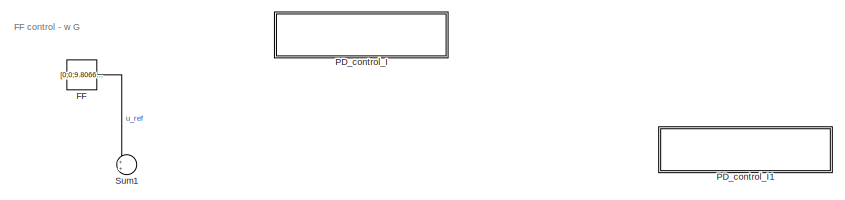
[diagram: root canvas - part 1/3, top center region]
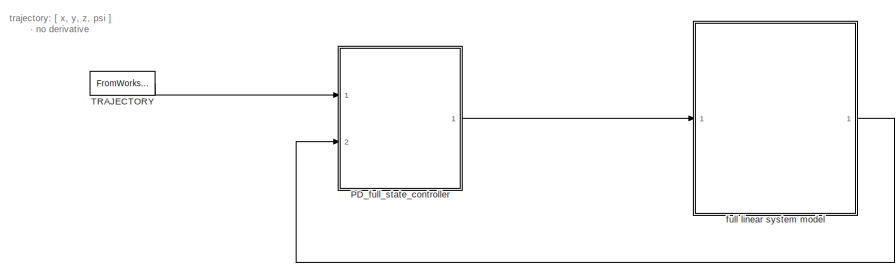
[diagram: root canvas - part 2/3, bottom left region]
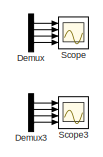
[diagram: root canvas - part 3/3, bottom right region]
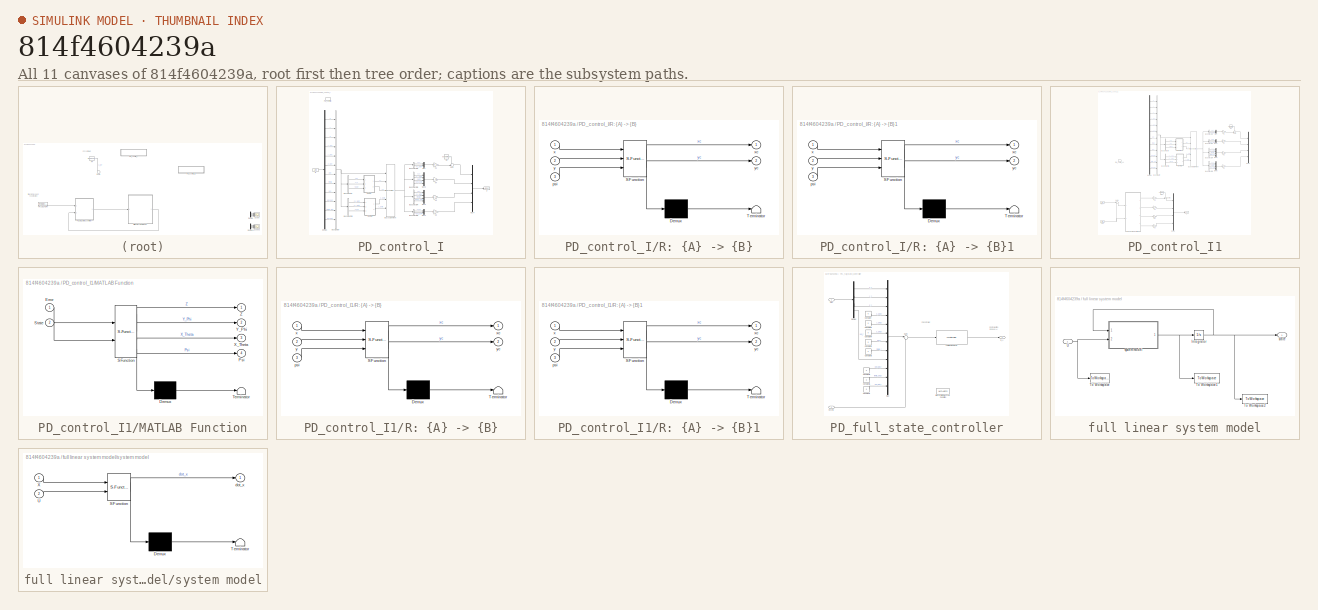
[diagram: thumbnail index - all 11 canvases of the model, root first then tree order]
MODEL slx_814f4604239a
KIND model
CONFIG AbsTol = 1e-5
CONFIG FixedStep = auto
CONFIG MaxStep = 1e-6
CONFIG MinStep = auto
CONFIG RelTol = 1e-5
CONFIG SampleTimeConstraint = Unconstrained
CONFIG Solver = ode45
CONFIG SolverMode = Auto
CONFIG SolverName = ode45
CONFIG StartTime = 0.0
CONFIG StopTime = Tfin
BLOCK [Demux] Demux
  Commented = on
  DisplayOption = bar
  Ports = [1, 4]
BLOCK [Demux] Demux3
  Commented = on
  DisplayOption = bar
  Ports = [1, 4]
BLOCK [Constant] FF
  Commented = on
  Value = [0;0;9.80665*param.m;0]
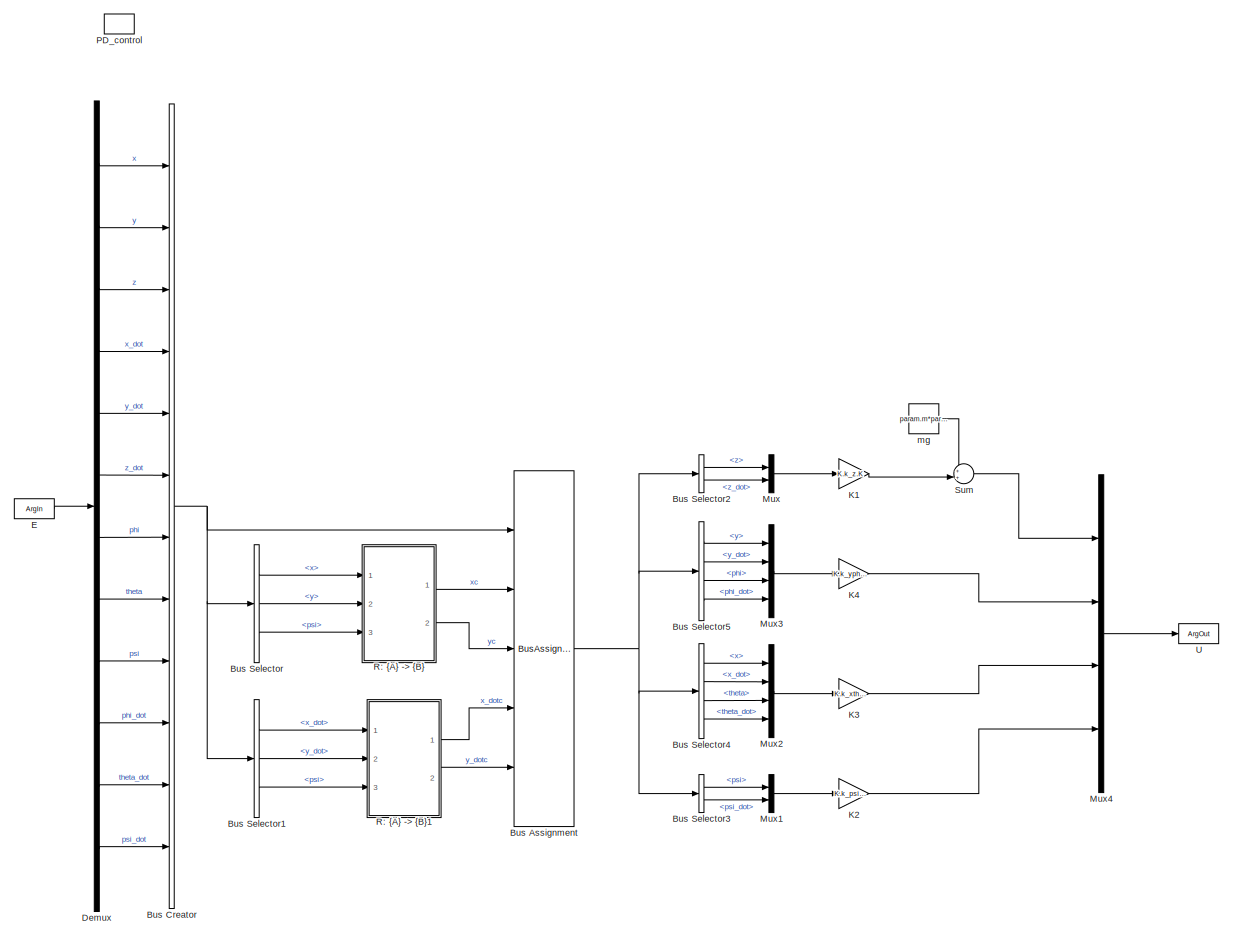
[diagram: PD_control_I - part 1/1, most of the canvas]
BLOCK [SubSystem] PD_control_I
  Ports = [0, 0, 0, 1]
  RequestExecContextInheritance = off
  TreatAsAtomicUnit = on
BLOCK [BusAssignment] PD_control_I/Bus Assignment
  AssignedSignals = x,y,x_dot,y_dot
  Ports = [5, 1]
BLOCK [BusCreator] PD_control_I/Bus Creator
  DisplayOption = bar
  Inputs = 12
  Ports = [12, 1]
BLOCK [BusSelector] PD_control_I/Bus Selector
  OutputSignals = x,y,psi
  Ports = [1, 3]
BLOCK [BusSelector] PD_control_I/Bus Selector1
  OutputSignals = x_dot,y_dot,psi
  Ports = [1, 3]
BLOCK [BusSelector] PD_control_I/Bus Selector2
  OutputSignals = z,z_dot
  Ports = [1, 2]
BLOCK [BusSelector] PD_control_I/Bus Selector3
  OutputSignals = psi,psi_dot
  Ports = [1, 2]
BLOCK [BusSelector] PD_control_I/Bus Selector4
  OutputSignals = x,x_dot,theta,theta_dot
  Ports = [1, 4]
BLOCK [BusSelector] PD_control_I/Bus Selector5
  OutputSignals = y,y_dot,phi,phi_dot
  Ports = [1, 4]
BLOCK [Demux] PD_control_I/Demux
  DisplayOption = bar
  Outputs = 12
  Ports = [1, 12]
BLOCK [ArgIn] PD_control_I/E
  ArgumentName = E
  DisableCoverage = on
  PortDimensions = 12
BLOCK [Gain] PD_control_I/K1
  Gain = K.k_z.K
  Multiplication = Matrix(K*u)
  OutDataTypeStr = Inherit: Inherit via internal rule
  ParamDataTypeStr = Inherit: Inherit via internal rule
  SaturateOnIntegerOverflow = off
BLOCK [Gain] PD_control_I/K2
  Gain = K.k_psi.K
  Multiplication = Matrix(K*u)
  OutDataTypeStr = Inherit: Inherit via internal rule
  ParamDataTypeStr = Inherit: Inherit via internal rule
  SaturateOnIntegerOverflow = off
BLOCK [Gain] PD_control_I/K3
  Gain = K.k_xtheta.K
  Multiplication = Matrix(K*u)
  OutDataTypeStr = Inherit: Inherit via internal rule
  ParamDataTypeStr = Inherit: Inherit via internal rule
  SaturateOnIntegerOverflow = off
BLOCK [Gain] PD_control_I/K4
  Gain = K.k_yphi.K
  Multiplication = Matrix(K*u)
  OutDataTypeStr = Inherit: Inherit via internal rule
  ParamDataTypeStr = Inherit: Inherit via internal rule
  SaturateOnIntegerOverflow = off
BLOCK [Mux] PD_control_I/Mux
  DisplayOption = bar
  Inputs = 2
  Ports = [2, 1]
BLOCK [Mux] PD_control_I/Mux1
  DisplayOption = bar
  Inputs = 2
  Ports = [2, 1]
BLOCK [Mux] PD_control_I/Mux2
  DisplayOption = bar
  Ports = [4, 1]
BLOCK [Mux] PD_control_I/Mux3
  DisplayOption = bar
  Ports = [4, 1]
BLOCK [Mux] PD_control_I/Mux4
  DisplayOption = bar
  Ports = [4, 1]
BLOCK [TriggerPort] PD_control_I/PD_control
  FunctionName = PD_control
  IsSimulinkFunction = on
  Ports = []
  StatesWhenEnabling = held
  TriggerType = function-call
BLOCK [SubSystem] PD_control_I/R: {A} -> {B}
  ErrorFcn = Stateflow.Translate.translate
  PermitHierarchicalResolution = ExplicitOnly
  Ports = [3, 2]
  RequestExecContextInheritance = off
  SFBlockType = MATLAB Function
  TreatAsAtomicUnit = on
BLOCK [Demux] PD_control_I/R: {A} -> {B}/ Demux 
  Outputs = 1
  Ports = [1, 1]
BLOCK [S-Function] PD_control_I/R: {A} -> {B}/ SFunction 
  EnableBusSupport = on
  FunctionName = sf_sfun
  PortCounts = [3 3]
  Ports = [3, 3]
  Tag = Stateflow S-Function main_sys_v2 1
BLOCK [Terminator] PD_control_I/R: {A} -> {B}/ Terminator 
BLOCK [Inport] PD_control_I/R: {A} -> {B}/psi
  IconDisplay = Port number
  Port = 3
BLOCK [Inport] PD_control_I/R: {A} -> {B}/x
  IconDisplay = Port number
BLOCK [Outport] PD_control_I/R: {A} -> {B}/xc
  IconDisplay = Port number
BLOCK [Inport] PD_control_I/R: {A} -> {B}/y
  IconDisplay = Port number
  Port = 2
BLOCK [Outport] PD_control_I/R: {A} -> {B}/yc
  IconDisplay = Port number
  Port = 2
BLOCK [SubSystem] PD_control_I/R: {A} -> {B}1
  ErrorFcn = Stateflow.Translate.translate
  PermitHierarchicalResolution = ExplicitOnly
  Ports = [3, 2]
  RequestExecContextInheritance = off
  SFBlockType = MATLAB Function
  TreatAsAtomicUnit = on
BLOCK [Demux] PD_control_I/R: {A} -> {B}1/ Demux 
  Outputs = 1
  Ports = [1, 1]
BLOCK [S-Function] PD_control_I/R: {A} -> {B}1/ SFunction 
  EnableBusSupport = on
  FunctionName = sf_sfun
  PortCounts = [3 3]
  Ports = [3, 3]
  Tag = Stateflow S-Function main_sys_v2 3
BLOCK [Terminator] PD_control_I/R: {A} -> {B}1/ Terminator 
BLOCK [Inport] PD_control_I/R: {A} -> {B}1/psi
  IconDisplay = Port number
  Port = 3
BLOCK [Inport] PD_control_I/R: {A} -> {B}1/x
  IconDisplay = Port number
BLOCK [Outport] PD_control_I/R: {A} -> {B}1/xc
  IconDisplay = Port number
BLOCK [Inport] PD_control_I/R: {A} -> {B}1/y
  IconDisplay = Port number
  Port = 2
BLOCK [Outport] PD_control_I/R: {A} -> {B}1/yc
  IconDisplay = Port number
  Port = 2
BLOCK [Sum] PD_control_I/Sum
  IconShape = round
  InputSameDT = off
  Inputs = ++|
  OutDataTypeStr = Inherit: Inherit via internal rule
  Ports = [2, 1]
  SaturateOnIntegerOverflow = off
BLOCK [ArgOut] PD_control_I/U
  ArgumentName = U
  DisableCoverage = on
  PortDimensions = 4
BLOCK [Constant] PD_control_I/mg
  SampleTime = -1
  Value = param.m*param.g
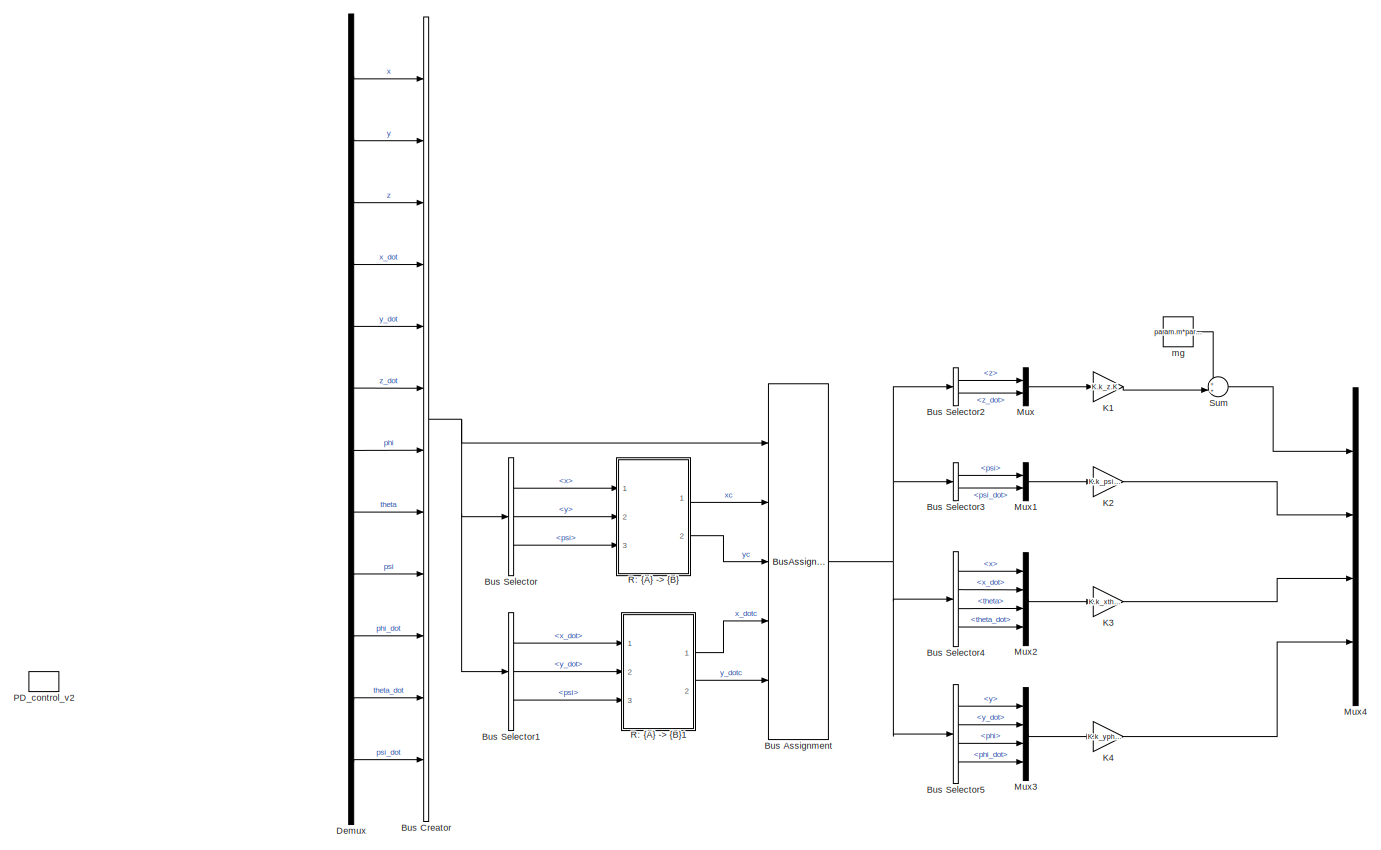
[diagram: PD_control_I1 - part 1/2, full width, top band]
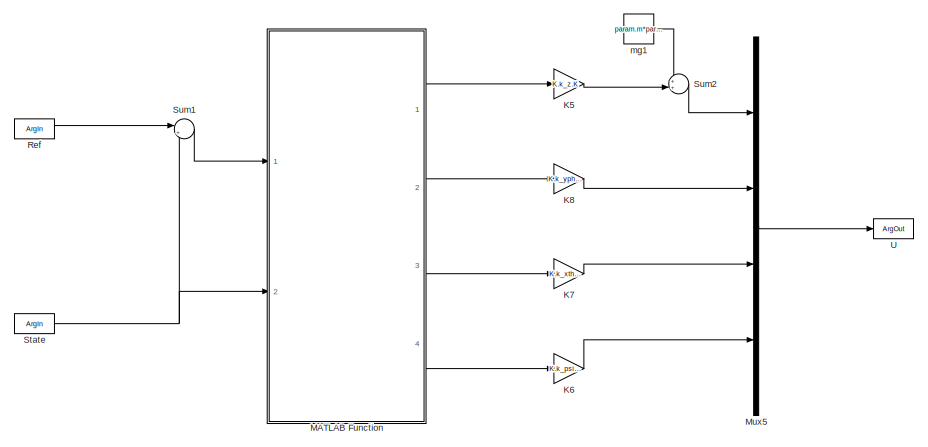
[diagram: PD_control_I1 - part 2/2, bottom left region]
BLOCK [SubSystem] PD_control_I1
  Ports = [0, 0, 0, 1]
  RequestExecContextInheritance = off
  TreatAsAtomicUnit = on
BLOCK [BusAssignment] PD_control_I1/Bus Assignment
  AssignedSignals = x,y,x_dot,y_dot
  Commented = on
  Ports = [5, 1]
BLOCK [BusCreator] PD_control_I1/Bus Creator
  Commented = on
  DisplayOption = bar
  Inputs = 12
  Ports = [12, 1]
BLOCK [BusSelector] PD_control_I1/Bus Selector
  Commented = on
  OutputSignals = x,y,psi
  Ports = [1, 3]
BLOCK [BusSelector] PD_control_I1/Bus Selector1
  Commented = on
  OutputSignals = x_dot,y_dot,psi
  Ports = [1, 3]
BLOCK [BusSelector] PD_control_I1/Bus Selector2
  Commented = on
  OutputSignals = z,z_dot
  Ports = [1, 2]
BLOCK [BusSelector] PD_control_I1/Bus Selector3
  Commented = on
  OutputSignals = psi,psi_dot
  Ports = [1, 2]
BLOCK [BusSelector] PD_control_I1/Bus Selector4
  Commented = on
  OutputSignals = x,x_dot,theta,theta_dot
  Ports = [1, 4]
BLOCK [BusSelector] PD_control_I1/Bus Selector5
  Commented = on
  OutputSignals = y,y_dot,phi,phi_dot
  Ports = [1, 4]
BLOCK [Demux] PD_control_I1/Demux
  Commented = on
  DisplayOption = bar
  Outputs = 12
  Ports = [1, 12]
BLOCK [Gain] PD_control_I1/K1
  Commented = on
  Gain = K.k_z.K
  Multiplication = Matrix(K*u)
  OutDataTypeStr = Inherit: Inherit via internal rule
  ParamDataTypeStr = Inherit: Inherit via internal rule
  SaturateOnIntegerOverflow = off
BLOCK [Gain] PD_control_I1/K2
  Commented = on
  Gain = K.k_psi.K
  Multiplication = Matrix(K*u)
  OutDataTypeStr = Inherit: Inherit via internal rule
  ParamDataTypeStr = Inherit: Inherit via internal rule
  SaturateOnIntegerOverflow = off
BLOCK [Gain] PD_control_I1/K3
  Commented = on
  Gain = K.k_xtheta.K
  Multiplication = Matrix(K*u)
  OutDataTypeStr = Inherit: Inherit via internal rule
  ParamDataTypeStr = Inherit: Inherit via internal rule
  SaturateOnIntegerOverflow = off
BLOCK [Gain] PD_control_I1/K4
  Commented = on
  Gain = K.k_yphi.K
  Multiplication = Matrix(K*u)
  OutDataTypeStr = Inherit: Inherit via internal rule
  ParamDataTypeStr = Inherit: Inherit via internal rule
  SaturateOnIntegerOverflow = off
BLOCK [Gain] PD_control_I1/K5
  Gain = K.k_z.K
  Multiplication = Matrix(K*u)
  OutDataTypeStr = Inherit: Inherit via internal rule
  ParamDataTypeStr = Inherit: Inherit via internal rule
  SaturateOnIntegerOverflow = off
BLOCK [Gain] PD_control_I1/K6
  Gain = K.k_psi.K
  Multiplication = Matrix(K*u)
  OutDataTypeStr = Inherit: Inherit via internal rule
  ParamDataTypeStr = Inherit: Inherit via internal rule
  SaturateOnIntegerOverflow = off
BLOCK [Gain] PD_control_I1/K7
  Gain = K.k_xtheta.K
  Multiplication = Matrix(K*u)
  OutDataTypeStr = Inherit: Inherit via internal rule
  ParamDataTypeStr = Inherit: Inherit via internal rule
  SaturateOnIntegerOverflow = off
BLOCK [Gain] PD_control_I1/K8
  Gain = K.k_yphi.K
  Multiplication = Matrix(K*u)
  OutDataTypeStr = Inherit: Inherit via internal rule
  ParamDataTypeStr = Inherit: Inherit via internal rule
  SaturateOnIntegerOverflow = off
BLOCK [SubSystem] PD_control_I1/MATLAB Function
  ErrorFcn = Stateflow.Translate.translate
  PermitHierarchicalResolution = ExplicitOnly
  Ports = [2, 4]
  RequestExecContextInheritance = off
  SFBlockType = MATLAB Function
  TreatAsAtomicUnit = on
BLOCK [Demux] PD_control_I1/MATLAB Function/ Demux 
  Outputs = 1
  Ports = [1, 1]
BLOCK [S-Function] PD_control_I1/MATLAB Function/ SFunction 
  EnableBusSupport = on
  FunctionName = sf_sfun
  PortCounts = [2 5]
  Ports = [2, 5]
  Tag = Stateflow S-Function main_sys_v2 6
BLOCK [Terminator] PD_control_I1/MATLAB Function/ Terminator 
BLOCK [Inport] PD_control_I1/MATLAB Function/Error
  IconDisplay = Port number
BLOCK [Outport] PD_control_I1/MATLAB Function/Psi
  IconDisplay = Port number
  Port = 4
BLOCK [Inport] PD_control_I1/MATLAB Function/State
  IconDisplay = Port number
  Port = 2
BLOCK [Outport] PD_control_I1/MATLAB Function/X_Theta
  IconDisplay = Port number
  Port = 3
BLOCK [Outport] PD_control_I1/MATLAB Function/Y_Phi
  IconDisplay = Port number
  Port = 2
BLOCK [Outport] PD_control_I1/MATLAB Function/Z
  IconDisplay = Port number
BLOCK [Mux] PD_control_I1/Mux
  Commented = on
  DisplayOption = bar
  Inputs = 2
  Ports = [2, 1]
BLOCK [Mux] PD_control_I1/Mux1
  Commented = on
  DisplayOption = bar
  Inputs = 2
  Ports = [2, 1]
BLOCK [Mux] PD_control_I1/Mux2
  Commented = on
  DisplayOption = bar
  Ports = [4, 1]
BLOCK [Mux] PD_control_I1/Mux3
  Commented = on
  DisplayOption = bar
  Ports = [4, 1]
BLOCK [Mux] PD_control_I1/Mux4
  Commented = on
  DisplayOption = bar
  Ports = [4, 1]
BLOCK [Mux] PD_control_I1/Mux5
  DisplayOption = bar
  Ports = [4, 1]
BLOCK [TriggerPort] PD_control_I1/PD_control_v2
  FunctionName = PD_control_v2
  IsSimulinkFunction = on
  Ports = []
  StatesWhenEnabling = held
  TriggerType = function-call
BLOCK [SubSystem] PD_control_I1/R: {A} -> {B}
  Commented = on
  ErrorFcn = Stateflow.Translate.translate
  PermitHierarchicalResolution = ExplicitOnly
  Ports = [3, 2]
  RequestExecContextInheritance = off
  SFBlockType = MATLAB Function
  TreatAsAtomicUnit = on
BLOCK [Demux] PD_control_I1/R: {A} -> {B}/ Demux 
  Outputs = 1
  Ports = [1, 1]
BLOCK [S-Function] PD_control_I1/R: {A} -> {B}/ SFunction 
  EnableBusSupport = on
  FunctionName = sf_sfun
  PortCounts = [3 3]
  Ports = [3, 3]
  Tag = Stateflow S-Function main_sys_v2 4
BLOCK [Terminator] PD_control_I1/R: {A} -> {B}/ Terminator 
BLOCK [Inport] PD_control_I1/R: {A} -> {B}/psi
  IconDisplay = Port number
  Port = 3
BLOCK [Inport] PD_control_I1/R: {A} -> {B}/x
  IconDisplay = Port number
BLOCK [Outport] PD_control_I1/R: {A} -> {B}/xc
  IconDisplay = Port number
BLOCK [Inport] PD_control_I1/R: {A} -> {B}/y
  IconDisplay = Port number
  Port = 2
BLOCK [Outport] PD_control_I1/R: {A} -> {B}/yc
  IconDisplay = Port number
  Port = 2
BLOCK [SubSystem] PD_control_I1/R: {A} -> {B}1
  Commented = on
  ErrorFcn = Stateflow.Translate.translate
  PermitHierarchicalResolution = ExplicitOnly
  Ports = [3, 2]
  RequestExecContextInheritance = off
  SFBlockType = MATLAB Function
  TreatAsAtomicUnit = on
BLOCK [Demux] PD_control_I1/R: {A} -> {B}1/ Demux 
  Outputs = 1
  Ports = [1, 1]
BLOCK [S-Function] PD_control_I1/R: {A} -> {B}1/ SFunction 
  EnableBusSupport = on
  FunctionName = sf_sfun
  PortCounts = [3 3]
  Ports = [3, 3]
  Tag = Stateflow S-Function main_sys_v2 5
BLOCK [Terminator] PD_control_I1/R: {A} -> {B}1/ Terminator 
BLOCK [Inport] PD_control_I1/R: {A} -> {B}1/psi
  IconDisplay = Port number
  Port = 3
BLOCK [Inport] PD_control_I1/R: {A} -> {B}1/x
  IconDisplay = Port number
BLOCK [Outport] PD_control_I1/R: {A} -> {B}1/xc
  IconDisplay = Port number
BLOCK [Inport] PD_control_I1/R: {A} -> {B}1/y
  IconDisplay = Port number
  Port = 2
BLOCK [Outport] PD_control_I1/R: {A} -> {B}1/yc
  IconDisplay = Port number
  Port = 2
BLOCK [ArgIn] PD_control_I1/Ref
  ArgumentName = Ref
  DisableCoverage = on
  PortDimensions = 12
BLOCK [ArgIn] PD_control_I1/State
  ArgumentName = State
  DisableCoverage = on
  Port = 2
  PortDimensions = 12
BLOCK [Sum] PD_control_I1/Sum
  Commented = on
  IconShape = round
  InputSameDT = off
  Inputs = ++|
  OutDataTypeStr = Inherit: Inherit via internal rule
  Ports = [2, 1]
  SaturateOnIntegerOverflow = off
BLOCK [Sum] PD_control_I1/Sum1
  IconShape = round
  InputSameDT = off
  Inputs = |+-
  OutDataTypeStr = Inherit: Inherit via internal rule
  Ports = [2, 1]
  SaturateOnIntegerOverflow = off
BLOCK [Sum] PD_control_I1/Sum2
  IconShape = round
  InputSameDT = off
  Inputs = ++|
  OutDataTypeStr = Inherit: Inherit via internal rule
  Ports = [2, 1]
  SaturateOnIntegerOverflow = off
BLOCK [ArgOut] PD_control_I1/U
  ArgumentName = U
  DisableCoverage = on
  PortDimensions = 4
BLOCK [Constant] PD_control_I1/mg
  Commented = on
  SampleTime = -1
  Value = param.m*param.g
BLOCK [Constant] PD_control_I1/mg1
  SampleTime = -1
  Value = param.m*param.g
BLOCK [SubSystem] PD_full_state_controller
  Ports = [2, 1]
  RequestExecContextInheritance = off
BLOCK [Constant] PD_full_state_controller/Constant
  Value = 0
BLOCK [Constant] PD_full_state_controller/Constant1
  Value = 0
BLOCK [Constant] PD_full_state_controller/Constant2
  Value = 0
BLOCK [Constant] PD_full_state_controller/Constant3
  Value = 0
BLOCK [Constant] PD_full_state_controller/Constant4
  Value = 0
BLOCK [Constant] PD_full_state_controller/Constant5
  Value = 0
BLOCK [Constant] PD_full_state_controller/Constant6
  Value = 0
BLOCK [Constant] PD_full_state_controller/Constant7
  Value = 0
BLOCK [Demux] PD_full_state_controller/Demux
  DisplayOption = bar
  Ports = [1, 4]
BLOCK [MATLABFcn] PD_full_state_controller/Interpreted MATLAB Function
  Commented = on
  MATLABFcn = PDv2control
  OutputDimensions = 4
  Ports = [1, 1]
BLOCK [FunctionCaller] PD_full_state_controller/Low level control
  FunctionPrototype = U = PD_control(E)
  Ports = [1, 1]
BLOCK [Mux] PD_full_state_controller/Mux
  DisplayOption = bar
  Inputs = 12
  Ports = [12, 1]
BLOCK [Inport] PD_full_state_controller/REF
  IconDisplay = Port number
BLOCK [Inport] PD_full_state_controller/STATE
  IconDisplay = Port number
  Port = 2
BLOCK [Sum] PD_full_state_controller/Sum
  IconShape = round
  InputSameDT = off
  Inputs = |+-
  OutDataTypeStr = Inherit: Inherit via internal rule
  Ports = [2, 1]
  SaturateOnIntegerOverflow = off
BLOCK [Outport] PD_full_state_controller/U_A
  IconDisplay = Port number
BLOCK [Scope] Scope
  Commented = on
  Floating = off
  NumInputPorts = 4
  Ports = [4]
  YMax = 5~5~5~5
  YMin = -5~-5~-5~-5
BLOCK [Scope] Scope3
  Commented = on
  Floating = off
  NumInputPorts = 4
  Ports = [4]
  SaveName = ScopeData3
  YMax = 5~5~5~5
  YMin = -5~-5~-5~-5
BLOCK [Sum] Sum1
  Commented = on
  IconShape = round
  InputSameDT = off
  Inputs = ++|
  OutDataTypeStr = Inherit: Inherit via internal rule
  Ports = [2, 1]
  SaturateOnIntegerOverflow = off
BLOCK [FromWorkspace] TRAJECTORY
  Interpolate = off
  OutputAfterFinalValue = Setting to zero
  SampleTime = param.hs
  VariableName = traj
  ZeroCross = on
BLOCK [SubSystem] full linear system model
  Ports = [1, 1]
  RequestExecContextInheritance = off
BLOCK [Integrator] full linear system model/Integrator
  InitialCondition = init.full
  Ports = [1, 1]
BLOCK [ToWorkspace] full linear system model/To Workspace
  FixptAsFi = on
  MaxDataPoints = inf
  Ports = [1]
  SampleTime = -1
  Save2DSignal = 3-D array (concatenate along third dimension)
  SaveFormat = Structure With Time
  VariableName = u_sim
BLOCK [ToWorkspace] full linear system model/To Workspace1
  FixptAsFi = on
  MaxDataPoints = inf
  Ports = [1]
  SampleTime = -1
  Save2DSignal = 3-D array (concatenate along third dimension)
  SaveFormat = Structure With Time
  VariableName = state_dot_sim
BLOCK [ToWorkspace] full linear system model/To Workspace2
  FixptAsFi = on
  MaxDataPoints = inf
  Ports = [1]
  SampleTime = -1
  Save2DSignal = 3-D array (concatenate along third dimension)
  SaveFormat = Structure With Time
  VariableName = state_sim
BLOCK [Inport] full linear system model/U
  IconDisplay = Port number
BLOCK [Outport] full linear system model/state
  IconDisplay = Port number
BLOCK [SubSystem] full linear system model/system model
  ErrorFcn = Stateflow.Translate.translate
  PermitHierarchicalResolution = ExplicitOnly
  Ports = [2, 1]
  RequestExecContextInheritance = off
  SFBlockType = MATLAB Function
  TreatAsAtomicUnit = on
BLOCK [Demux] full linear system model/system model/ Demux 
  Outputs = 1
  Ports = [1, 1]
BLOCK [S-Function] full linear system model/system model/ SFunction 
  EnableBusSupport = on
  FunctionName = sf_sfun
  PortCounts = [2 2]
  Ports = [2, 2]
  Tag = Stateflow S-Function main_sys_v2 2
BLOCK [Terminator] full linear system model/system model/ Terminator 
BLOCK [Inport] full linear system model/system model/U
  IconDisplay = Port number
  Port = 2
BLOCK [Inport] full linear system model/system model/X
  IconDisplay = Port number
BLOCK [Outport] full linear system model/system model/dot_x
  IconDisplay = Port number
ANNOTATION (root): FF control - w G
ANNOTATION (root): trajectory: [ x, y, z, psi ] · no derivative
ANNOTATION PD_full_state_controller: Control action in base {A} [ u, v, w, Tpsi ]
ANNOTATION PD_full_state_controller: PD controller
LINE Demux3:1 -> Scope3:1
LINE Demux3:2 -> Scope3:2
LINE Demux3:3 -> Scope3:3
LINE Demux3:4 -> Scope3:4
LINE Demux:1 -> Scope:1
LINE Demux:2 -> Scope:2
LINE Demux:3 -> Scope:3
LINE Demux:4 -> Scope:4
LINE FF:1 -> Sum1:1
NET PD_control_I/Bus Assignment:1 -> PD_control_I/Bus Selector2:1, PD_control_I/Bus Selector3:1, PD_control_I/Bus Selector4:1, PD_control_I/Bus Selector5:1
NET PD_control_I/Bus Creator:1 -> PD_control_I/Bus Assignment:1, PD_control_I/Bus Selector1:1, PD_control_I/Bus Selector:1
LINE PD_control_I/Bus Selector1:1 -> PD_control_I/R: {A} -> {B}1:1
LINE PD_control_I/Bus Selector1:2 -> PD_control_I/R: {A} -> {B}1:2
LINE PD_control_I/Bus Selector1:3 -> PD_control_I/R: {A} -> {B}1:3
LINE PD_control_I/Bus Selector2:1 -> PD_control_I/Mux:1
LINE PD_control_I/Bus Selector2:2 -> PD_control_I/Mux:2
LINE PD_control_I/Bus Selector3:1 -> PD_control_I/Mux1:1
LINE PD_control_I/Bus Selector3:2 -> PD_control_I/Mux1:2
LINE PD_control_I/Bus Selector4:1 -> PD_control_I/Mux2:1
LINE PD_control_I/Bus Selector4:2 -> PD_control_I/Mux2:2
LINE PD_control_I/Bus Selector4:3 -> PD_control_I/Mux2:3
LINE PD_control_I/Bus Selector4:4 -> PD_control_I/Mux2:4
LINE PD_control_I/Bus Selector5:1 -> PD_control_I/Mux3:1
LINE PD_control_I/Bus Selector5:2 -> PD_control_I/Mux3:2
LINE PD_control_I/Bus Selector5:3 -> PD_control_I/Mux3:3
LINE PD_control_I/Bus Selector5:4 -> PD_control_I/Mux3:4
LINE PD_control_I/Bus Selector:1 -> PD_control_I/R: {A} -> {B}:1
LINE PD_control_I/Bus Selector:2 -> PD_control_I/R: {A} -> {B}:2
LINE PD_control_I/Bus Selector:3 -> PD_control_I/R: {A} -> {B}:3
LINE PD_control_I/Demux:1 -> PD_control_I/Bus Creator:1
LINE PD_control_I/Demux:10 -> PD_control_I/Bus Creator:10
LINE PD_control_I/Demux:11 -> PD_control_I/Bus Creator:11
LINE PD_control_I/Demux:12 -> PD_control_I/Bus Creator:12
LINE PD_control_I/Demux:2 -> PD_control_I/Bus Creator:2
LINE PD_control_I/Demux:3 -> PD_control_I/Bus Creator:3
LINE PD_control_I/Demux:4 -> PD_control_I/Bus Creator:4
LINE PD_control_I/Demux:5 -> PD_control_I/Bus Creator:5
LINE PD_control_I/Demux:6 -> PD_control_I/Bus Creator:6
LINE PD_control_I/Demux:7 -> PD_control_I/Bus Creator:7
LINE PD_control_I/Demux:8 -> PD_control_I/Bus Creator:8
LINE PD_control_I/Demux:9 -> PD_control_I/Bus Creator:9
LINE PD_control_I/E:1 -> PD_control_I/Demux:1
LINE PD_control_I/K1:1 -> PD_control_I/Sum:2
LINE PD_control_I/K2:1 -> PD_control_I/Mux4:4
LINE PD_control_I/K3:1 -> PD_control_I/Mux4:3
LINE PD_control_I/K4:1 -> PD_control_I/Mux4:2
LINE PD_control_I/Mux1:1 -> PD_control_I/K2:1
LINE PD_control_I/Mux2:1 -> PD_control_I/K3:1
LINE PD_control_I/Mux3:1 -> PD_control_I/K4:1
LINE PD_control_I/Mux4:1 -> PD_control_I/U:1
LINE PD_control_I/Mux:1 -> PD_control_I/K1:1
LINE PD_control_I/R: {A} -> {B}1:1 -> PD_control_I/Bus Assignment:4
LINE PD_control_I/R: {A} -> {B}1:2 -> PD_control_I/Bus Assignment:5
LINE PD_control_I/R: {A} -> {B}:1 -> PD_control_I/Bus Assignment:2
LINE PD_control_I/R: {A} -> {B}:2 -> PD_control_I/Bus Assignment:3
LINE PD_control_I/Sum:1 -> PD_control_I/Mux4:1
LINE PD_control_I/mg:1 -> PD_control_I/Sum:1
NET PD_control_I1/Bus Assignment:1 -> PD_control_I1/Bus Selector2:1, PD_control_I1/Bus Selector3:1, PD_control_I1/Bus Selector4:1, PD_control_I1/Bus Selector5:1
NET PD_control_I1/Bus Creator:1 -> PD_control_I1/Bus Assignment:1, PD_control_I1/Bus Selector1:1, PD_control_I1/Bus Selector:1
LINE PD_control_I1/Bus Selector1:1 -> PD_control_I1/R: {A} -> {B}1:1
LINE PD_control_I1/Bus Selector1:2 -> PD_control_I1/R: {A} -> {B}1:2
LINE PD_control_I1/Bus Selector1:3 -> PD_control_I1/R: {A} -> {B}1:3
LINE PD_control_I1/Bus Selector2:1 -> PD_control_I1/Mux:1
LINE PD_control_I1/Bus Selector2:2 -> PD_control_I1/Mux:2
LINE PD_control_I1/Bus Selector3:1 -> PD_control_I1/Mux1:1
LINE PD_control_I1/Bus Selector3:2 -> PD_control_I1/Mux1:2
LINE PD_control_I1/Bus Selector4:1 -> PD_control_I1/Mux2:1
LINE PD_control_I1/Bus Selector4:2 -> PD_control_I1/Mux2:2
LINE PD_control_I1/Bus Selector4:3 -> PD_control_I1/Mux2:3
LINE PD_control_I1/Bus Selector4:4 -> PD_control_I1/Mux2:4
LINE PD_control_I1/Bus Selector5:1 -> PD_control_I1/Mux3:1
LINE PD_control_I1/Bus Selector5:2 -> PD_control_I1/Mux3:2
LINE PD_control_I1/Bus Selector5:3 -> PD_control_I1/Mux3:3
LINE PD_control_I1/Bus Selector5:4 -> PD_control_I1/Mux3:4
LINE PD_control_I1/Bus Selector:1 -> PD_control_I1/R: {A} -> {B}:1
LINE PD_control_I1/Bus Selector:2 -> PD_control_I1/R: {A} -> {B}:2
LINE PD_control_I1/Bus Selector:3 -> PD_control_I1/R: {A} -> {B}:3
LINE PD_control_I1/Demux:1 -> PD_control_I1/Bus Creator:1
LINE PD_control_I1/Demux:10 -> PD_control_I1/Bus Creator:10
LINE PD_control_I1/Demux:11 -> PD_control_I1/Bus Creator:11
LINE PD_control_I1/Demux:12 -> PD_control_I1/Bus Creator:12
LINE PD_control_I1/Demux:2 -> PD_control_I1/Bus Creator:2
LINE PD_control_I1/Demux:3 -> PD_control_I1/Bus Creator:3
LINE PD_control_I1/Demux:4 -> PD_control_I1/Bus Creator:4
LINE PD_control_I1/Demux:5 -> PD_control_I1/Bus Creator:5
LINE PD_control_I1/Demux:6 -> PD_control_I1/Bus Creator:6
LINE PD_control_I1/Demux:7 -> PD_control_I1/Bus Creator:7
LINE PD_control_I1/Demux:8 -> PD_control_I1/Bus Creator:8
LINE PD_control_I1/Demux:9 -> PD_control_I1/Bus Creator:9
LINE PD_control_I1/K1:1 -> PD_control_I1/Sum:2
LINE PD_control_I1/K2:1 -> PD_control_I1/Mux4:2
LINE PD_control_I1/K3:1 -> PD_control_I1/Mux4:3
LINE PD_control_I1/K4:1 -> PD_control_I1/Mux4:4
LINE PD_control_I1/K5:1 -> PD_control_I1/Sum2:2
LINE PD_control_I1/K6:1 -> PD_control_I1/Mux5:4
LINE PD_control_I1/K7:1 -> PD_control_I1/Mux5:3
LINE PD_control_I1/K8:1 -> PD_control_I1/Mux5:2
LINE PD_control_I1/MATLAB Function:1 -> PD_control_I1/K5:1
LINE PD_control_I1/MATLAB Function:2 -> PD_control_I1/K8:1
LINE PD_control_I1/MATLAB Function:3 -> PD_control_I1/K7:1
LINE PD_control_I1/MATLAB Function:4 -> PD_control_I1/K6:1
LINE PD_control_I1/Mux1:1 -> PD_control_I1/K2:1
LINE PD_control_I1/Mux2:1 -> PD_control_I1/K3:1
LINE PD_control_I1/Mux3:1 -> PD_control_I1/K4:1
LINE PD_control_I1/Mux5:1 -> PD_control_I1/U:1
LINE PD_control_I1/Mux:1 -> PD_control_I1/K1:1
LINE PD_control_I1/R: {A} -> {B}1:1 -> PD_control_I1/Bus Assignment:4
LINE PD_control_I1/R: {A} -> {B}1:2 -> PD_control_I1/Bus Assignment:5
LINE PD_control_I1/R: {A} -> {B}:1 -> PD_control_I1/Bus Assignment:2
LINE PD_control_I1/R: {A} -> {B}:2 -> PD_control_I1/Bus Assignment:3
LINE PD_control_I1/Ref:1 -> PD_control_I1/Sum1:1
NET PD_control_I1/State:1 -> PD_control_I1/MATLAB Function:2, PD_control_I1/Sum1:2
LINE PD_control_I1/Sum1:1 -> PD_control_I1/MATLAB Function:1
LINE PD_control_I1/Sum2:1 -> PD_control_I1/Mux5:1
LINE PD_control_I1/Sum:1 -> PD_control_I1/Mux4:1
LINE PD_control_I1/mg1:1 -> PD_control_I1/Sum2:1
LINE PD_control_I1/mg:1 -> PD_control_I1/Sum:1
LINE PD_full_state_controller/Constant1:1 -> PD_full_state_controller/Mux:5
LINE PD_full_state_controller/Constant2:1 -> PD_full_state_controller/Mux:7
LINE PD_full_state_controller/Constant3:1 -> PD_full_state_controller/Mux:8
LINE PD_full_state_controller/Constant4:1 -> PD_full_state_controller/Mux:6
LINE PD_full_state_controller/Constant5:1 -> PD_full_state_controller/Mux:10
LINE PD_full_state_controller/Constant6:1 -> PD_full_state_controller/Mux:11
LINE PD_full_state_controller/Constant7:1 -> PD_full_state_controller/Mux:12
LINE PD_full_state_controller/Constant:1 -> PD_full_state_controller/Mux:4
LINE PD_full_state_controller/Demux:1 -> PD_full_state_controller/Mux:1
LINE PD_full_state_controller/Demux:2 -> PD_full_state_controller/Mux:2
LINE PD_full_state_controller/Demux:3 -> PD_full_state_controller/Mux:3
LINE PD_full_state_controller/Demux:4 -> PD_full_state_controller/Mux:9
LINE PD_full_state_controller/Low level control:1 -> PD_full_state_controller/U_A:1
LINE PD_full_state_controller/Mux:1 -> PD_full_state_controller/Sum:1
LINE PD_full_state_controller/REF:1 -> PD_full_state_controller/Demux:1
LINE PD_full_state_controller/STATE:1 -> PD_full_state_controller/Sum:2
LINE PD_full_state_controller/Sum:1 -> PD_full_state_controller/Low level control:1
LINE PD_full_state_controller:1 -> full linear system model:1
LINE TRAJECTORY:1 -> PD_full_state_controller:1
NET full linear system model/Integrator:1 -> full linear system model/To Workspace2:1, full linear system model/state:1, full linear system model/system model:1
NET full linear system model/U:1 -> full linear system model/To Workspace:1, full linear system model/system model:2
NET full linear system model/system model:1 -> full linear system model/Integrator:1, full linear system model/To Workspace1:1
LINE full linear system model:1 -> PD_full_state_controller:2
note: NET lines group one-source signal fan-out (src -> all destinations, sorted); 1:1 wires keep LINE
CHART PD_control_I/R: {A} -> {B} states=1 transitions=1
  STATE_LABEL 'eML_blk_kernel()'
  STATE_LABEL "SCRIPT:\nfunction [xc, yc] = fcn(x, y, psi)\n%#codegen\n% Change in cordenates from fixed frame {A} to body frame {B} of position\n%  state coordenates\n% · apply rotation matrix over phi (vertical) to [x] and [y]\n% · the references are given in fix frame {A}, input [u] is computed in\n%   body frame {B}\n\nR = [ cos(psi) -sin(psi)\n      sin(psi)  cos(psi)];\na = R * [x, y]';\nxc = a(1);\nyc = a(2);"
CHART full linear system model/system model states=1 transitions=1
  STATE_LABEL 'eML_blk_kernel()'
  STATE_LABEL 'SCRIPT:\nfunction dot_x = eq_quad_lin( X, U )\n% Computes the linearized dynamics model of a quadcopter\n\n% State\n    x      = X(1);     Vx   = X(4);\n    y      = X(2);     Vy   = X(5);\n    z      = X(3);     Vz   = X(6);\n\n    phi    = X(7);     p    = X(10);\n    theta  = X(8);     q    = X(11);\n    psi    = X(9);     r    = X(12);\n\n% Inputs\n    T  = U(1);       Tphi   = U(2);\n                     Tt...<+478ch>'
CHART PD_control_I/R: {A} -> {B}1 states=1 transitions=1
  STATE_LABEL 'eML_blk_kernel()'
  STATE_LABEL 'SCRIPT:\nfunction [xc, yc] = fcn(x, y, psi)\n%#codegen\n% Change in cordenates from fixed frame {A} to body frame {B} of position\n%  state coordenates\n% · apply rotation matrix over phi (vertical) to [x] and [y]\n% · the references are given in fix frame {A}, input [u] is computed in\n%   body frame {B}\n\nR = [ cos(psi) -sin(psi)\n      sin(psi)  cos(psi)];\na = R * [x; y];\nxc = a(1); \nyc = a(2);'
CHART PD_control_I1/R: {A} -> {B} states=1 transitions=1
  STATE_LABEL 'eML_blk_kernel()'
  STATE_LABEL "SCRIPT:\nfunction [xc, yc] = fcn(x, y, psi)\n%#codegen\n% Change in cordenates from fixed frame {A} to body frame {B} of position\n%  state coordenates\n% · apply rotation matrix over phi (vertical) to [x] and [y]\n% · the references are given in fix frame {A}, input [u] is computed in\n%   body frame {B}\n\nR = [ cos(psi) sin(psi)\n     -sin(psi) cos(psi)];\na = R * [x, y]';\nxc = a(1);\nyc = a(2);"
CHART PD_control_I1/R: {A} -> {B}1 states=1 transitions=1
  STATE_LABEL 'eML_blk_kernel()'
  STATE_LABEL 'SCRIPT:\nfunction [xc, yc] = fcn(x, y, psi)\n%#codegen\n% Change in cordenates from fixed frame {A} to body frame {B} of position\n%  state coordenates\n% · apply rotation matrix over phi (vertical) to [x] and [y]\n% · the references are given in fix frame {A}, input [u] is computed in\n%   body frame {B}\n\nR = [ cos(psi) sin(psi)\n     -sin(psi) cos(psi)];\na = R * [x; y];\nxc = a(1); \nyc = a(2);'
CHART PD_control_I1/MATLAB Function states=1 transitions=1
  STATE_LABEL 'eML_blk_kernel()'
  STATE_LABEL 'SCRIPT:\nfunction [Z, Y_Phi, X_Theta, Psi] = fcn(Error, State)\n%#codegen\n\n% Inputs\n    % Error = Ref - State\n    x_e = Error(1);       x_dot_e = Error(4);\n    y_e = Error(2);       y_dot_e = Error(5);\n    z_e = Error(3);       z_dot_e = Error(6);\n\n    phi_e   = Error(7);   phi_dot_e   = Error(10);\n    theta_e = Error(8);   theta_dot_e = Error(11);\n    psi_e   = Error(9);   psi_dot_e   = Error(12);\n...<+1104ch>'
